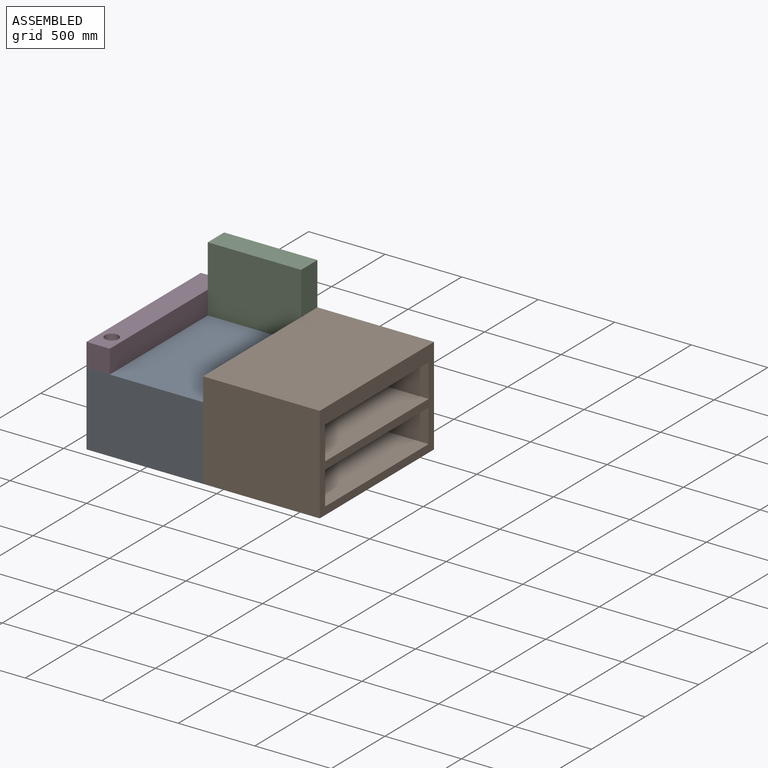
[diagram: assembled view]
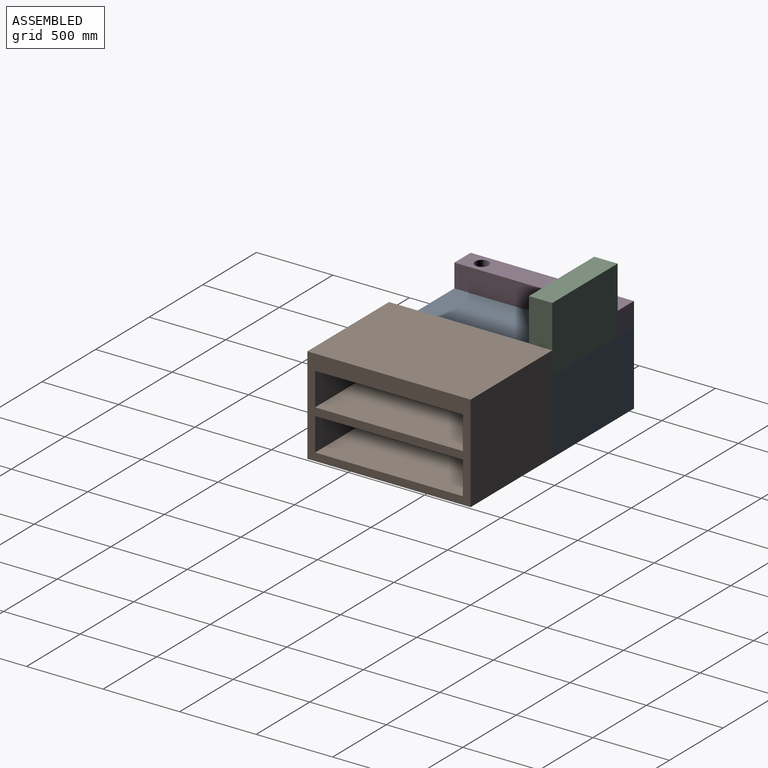
[diagram: assembled view, second angle]
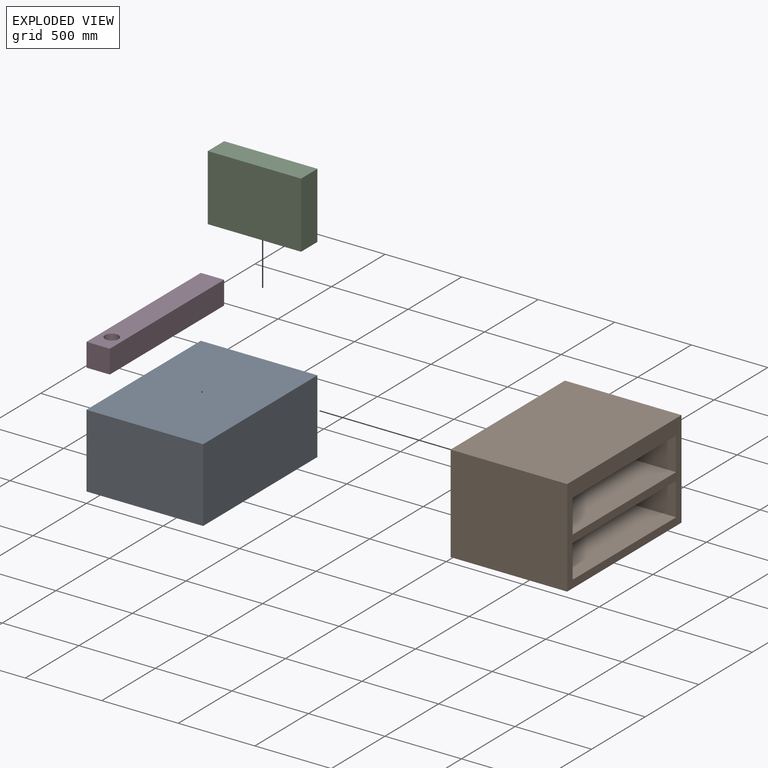
[diagram: exploded view]
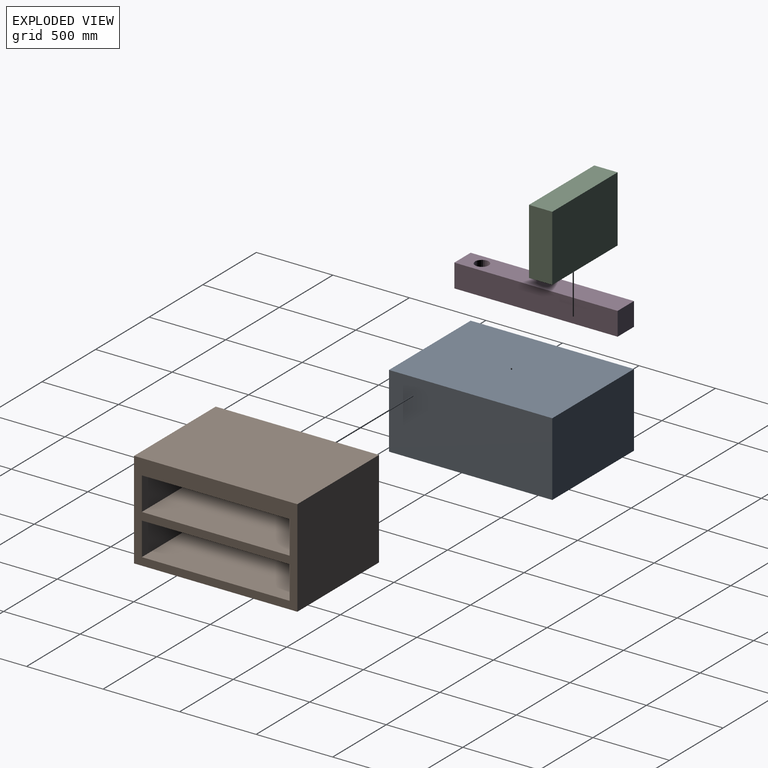
[diagram: exploded view, second angle]
ASSEMBLY  parts=4 mates=4
PART A: 6 faces, bbox 762x1066.8x482.6 mm
  f0: plane 1066.8x482.6mm, normal (1,0,0), area 514837.7mm2, adj f1,f3,f4,f5
  f1: plane 762x482.6mm, normal (0,1,0), area 367741.2mm2, adj f0,f2,f4,f5
  f2: plane 1066.8x482.6mm, normal (-1,0,0), area 514837.7mm2, adj f1,f3,f4,f5
  f3: plane 762x482.6mm, normal (0,-1,0), area 367741.2mm2, adj f0,f2,f4,f5
  f4: plane 1066.8x762mm, normal (0,0,1), area 812901.6mm2, adj f0,f1,f2,f3
  f5: plane 1066.8x762mm, normal (0,0,-1), area 812901.6mm2, adj f0,f1,f2,f3
PART B: 21 faces, bbox 1066.8x762x635 mm
  f0: plane 1066.8x635mm, normal (0,1,0), area 260644.6mm2, adj f4,f5,f6,f7,f11,f12,f13,f14
  f1: plane 609.6x50.8mm, normal (1,0,0), area 30967.7mm2, adj f2,f8,f9,f10
  f2: plane 609.6x457.2mm, normal (0,0,-1), area 278709.1mm2, adj f1,f3,f9,f10
  f3: plane 609.6x50.8mm, normal (-1,0,0), area 30967.7mm2, adj f2,f8,f9,f10
  f4: plane 762x635mm, normal (1,0,0), area 483870mm2, adj f0,f5,f7,f9
  f5: plane 1066.8x762mm, normal (0,0,1), area 812901.6mm2, adj f0,f4,f6,f9
  f6: plane 762x635mm, normal (-1,0,0), area 483870mm2, adj f0,f5,f7,f9
  f7: plane 1066.8x762mm, normal (0,0,-1), area 812901.6mm2, adj f0,f4,f6,f9
  f8: plane 609.6x457.2mm, normal (0,0,1), area 278709.1mm2, adj f1,f3,f9,f10
  f9: plane 1066.8x635mm, normal (0,-1,0), area 654192.2mm2, adj f1,f2,f3,f4,f5,f6,f7,f8
  f10: plane 457.2x50.8mm, normal (0,-1,0), area 23225.8mm2, adj f1,f2,f3,f8
  f11: plane 965.2x457.2mm, normal (0,0,-1), area 441289.4mm2, adj f0,f12,f14,f15
  f12: plane 457.2x215.9mm, normal (-1,0,0), area 98709.5mm2, adj f0,f11,f13,f15
  f13: plane 965.2x457.2mm, normal (0,0,1), area 441289.4mm2, adj f0,f12,f14,f15
  f14: plane 457.2x215.9mm, normal (1,0,0), area 98709.5mm2, adj f0,f11,f13,f15
  f15: plane 965.2x215.9mm, normal (0,1,0), area 208386.7mm2, adj f11,f12,f13,f14
  f16: plane 965.2x457.2mm, normal (0,0,-1), area 441289.4mm2, adj f0,f17,f19,f20
  f17: plane 457.2x215.9mm, normal (-1,0,0), area 98709.5mm2, adj f0,f16,f18,f20
  f18: plane 965.2x457.2mm, normal (0,0,1), area 441289.4mm2, adj f0,f17,f19,f20
  f19: plane 457.2x215.9mm, normal (1,0,0), area 98709.5mm2, adj f0,f16,f18,f20
  f20: plane 965.2x215.9mm, normal (0,1,0), area 208386.7mm2, adj f16,f17,f18,f19
PART C: 6 faces, bbox 609.6x152.4x431.8 mm
  f0: plane 609.6x431.8mm, normal (0,1,0), area 263225.3mm2, adj f1,f3,f4,f5
  f1: plane 431.8x152.4mm, normal (-1,0,0), area 65806.3mm2, adj f0,f2,f4,f5
  f2: plane 609.6x431.8mm, normal (0,-1,0), area 263225.3mm2, adj f1,f3,f4,f5
  f3: plane 431.8x152.4mm, normal (1,0,0), area 65806.3mm2, adj f0,f2,f4,f5
  f4: plane 609.6x152.4mm, normal (0,0,1), area 92903mm2, adj f0,f1,f2,f3
  f5: plane 609.6x152.4mm, normal (0,0,-1), area 92903mm2, adj f0,f1,f2,f3
PART D: 8 faces, bbox 152.4x1066.8x152.4 mm
  f0: plane 1066.8x152.4mm, normal (1,0,0), area 162580.3mm2, adj f1,f3,f5,f6
  f1: plane 152.4x152.4mm, normal (0,1,0), area 23225.8mm2, adj f0,f2,f5,f6
  f2: plane 1066.8x152.4mm, normal (-1,0,0), area 162580.3mm2, adj f1,f3,f5,f6
  f3: plane 152.4x152.4mm, normal (0,-1,0), area 23225.8mm2, adj f0,f2,f5,f6
  f4: cylinder r=44.45mm len=88.9mm, axis (0,0,-1), area 21281.7mm2, adj f5,f7
  f5: plane 1066.8x152.4mm, normal (0,0,1), area 156373.2mm2, adj f0,f1,f2,f3,f4
  f6: plane 1066.8x152.4mm, normal (0,0,-1), area 162580.3mm2, adj f0,f1,f2,f3
  f7: plane 88.9x88.9mm, normal (0,0,1), area 6207.2mm2, adj f4
PLACE A t=(-166.75,100.97,54.56)mm
PLACE B rot(axis=(0,0,-1),90deg) t=(976.25,100.97,372.06)mm
PLACE C t=(-90.55,558.17,537.16)mm
PLACE D t=(-471.55,100.97,537.16)mm
MATE parallel C.f5 <-> A.f4  axis (0,0,1) through (214.25,634.37,537.16)mm
MATE parallel B.f9 <-> A.f0  axis (-1,0,0) through (214.25,634.37,54.56)mm
MATE parallel C.f1 <-> D.f0  axis (-1,0,0) through (-395.35,634.37,537.16)mm
MATE parallel D.f6 <-> A.f4  axis (0,0,1) through (-547.75,-432.43,537.16)mm
